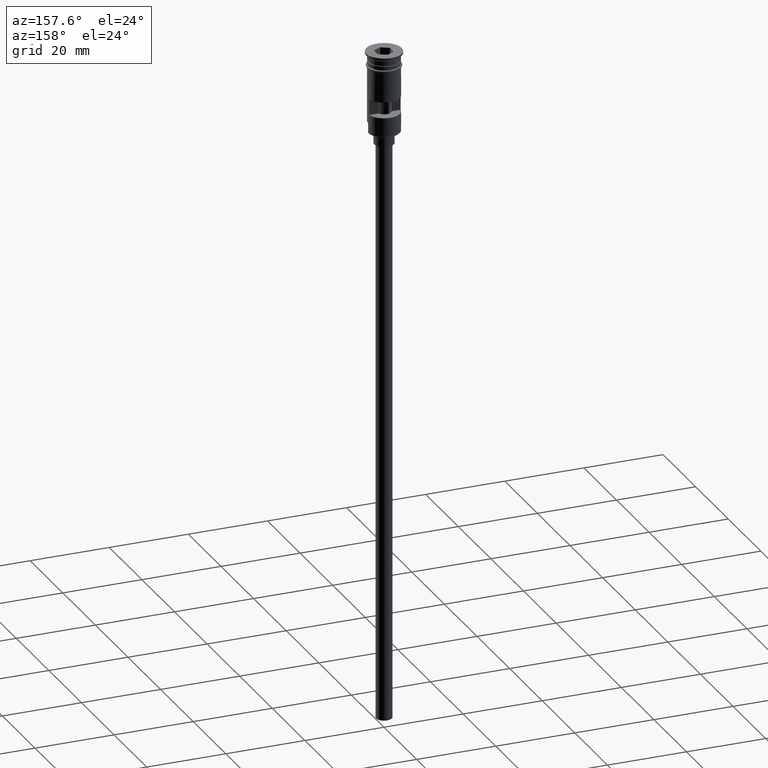
[diagram: clean part render]
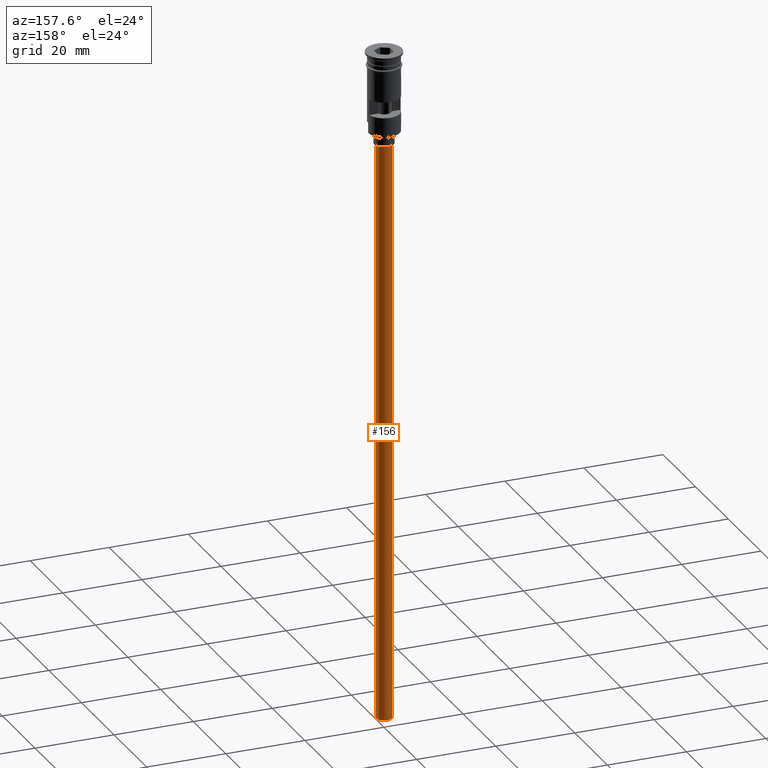
[diagram: same view with one face highlighted and labeled with its STEP entity id]
A machine part, auxiliary view. The second image highlights one B-rep face of the part: STEP entity #156.
In plain terms, the highlighted cylindrical surface (edge-blend (fillet) strip) has radius 2 mm, axis along (-0, -0, 1).
Its self-contained STEP definition (entity closure, byte-faithful):
#9 = CYLINDRICAL_SURFACE ( 'NONE', #616, 2.000000000000000000 ) ;
#122 = DIRECTION ( 'NONE',  ( -0.000000000000000000, -0.000000000000000000, 1.000000000000000000 ) ) ;
#156 = ADVANCED_FACE ( 'NONE', ( #1235 ), #9, .T. ) ;
#190 = VERTEX_POINT ( 'NONE', #832 ) ;
#206 = CARTESIAN_POINT ( 'NONE',  ( 2.000000000000000000, 0.000000000000000000, -170.4999999999999716 ) ) ;
#215 = EDGE_CURVE ( 'NONE', #190, #609, #642, .T. ) ;
#216 = DIRECTION ( 'NONE',  ( -0.000000000000000000, -0.000000000000000000, 1.000000000000000000 ) ) ;
#277 = ORIENTED_EDGE ( 'NONE', *, *, #215, .F. ) ;
#304 = CARTESIAN_POINT ( 'NONE',  ( 0.000000000000000000, 0.000000000000000000, -23.49999999999999645 ) ) ;
#305 = CARTESIAN_POINT ( 'NONE',  ( -2.000000000000000000, 2.449293598294706414E-16, -23.49999999999999645 ) ) ;
#313 = DIRECTION ( 'NONE',  ( -1.000000000000000000, 0.000000000000000000, 0.000000000000000000 ) ) ;
#326 = VERTEX_POINT ( 'NONE', #305 ) ;
#452 = DIRECTION ( 'NONE',  ( -0.000000000000000000, -0.000000000000000000, 1.000000000000000000 ) ) ;
#471 = CARTESIAN_POINT ( 'NONE',  ( -2.000000000000000000, 2.449293598294706414E-16, -170.4999999999999716 ) ) ;
#474 = CARTESIAN_POINT ( 'NONE',  ( 0.000000000000000000, 0.000000000000000000, -170.4999999999999716 ) ) ;
#568 = ORIENTED_EDGE ( 'NONE', *, *, #1031, .T. ) ;
#609 = VERTEX_POINT ( 'NONE', #1317 ) ;
#616 = AXIS2_PLACEMENT_3D ( 'NONE', #474, #122, #624 ) ;
#624 = DIRECTION ( 'NONE',  ( 1.000000000000000000, 0.000000000000000000, 0.000000000000000000 ) ) ;
#642 = CIRCLE ( 'NONE', #822, 2.000000000000000000 ) ;
#704 = CARTESIAN_POINT ( 'NONE',  ( 2.000000000000000000, 0.000000000000000000, -23.49999999999999645 ) ) ;
#719 = VERTEX_POINT ( 'NONE', #704 ) ;
#724 = ORIENTED_EDGE ( 'NONE', *, *, #1190, .T. ) ;
#792 = EDGE_CURVE ( 'NONE', #609, #719, #1060, .T. ) ;
#796 = DIRECTION ( 'NONE',  ( 0.000000000000000000, 0.000000000000000000, -1.000000000000000000 ) ) ;
#822 = AXIS2_PLACEMENT_3D ( 'NONE', #1149, #1013, #991 ) ;
#826 = AXIS2_PLACEMENT_3D ( 'NONE', #304, #796, #313 ) ;
#827 = VECTOR ( 'NONE', #216, 1000.000000000000000 ) ;
#832 = CARTESIAN_POINT ( 'NONE',  ( -2.000000000000000000, 2.449293598294706414E-16, -170.4999999999999716 ) ) ;
#991 = DIRECTION ( 'NONE',  ( -1.000000000000000000, 0.000000000000000000, 0.000000000000000000 ) ) ;
#1013 = DIRECTION ( 'NONE',  ( 0.000000000000000000, 0.000000000000000000, -1.000000000000000000 ) ) ;
#1031 = EDGE_CURVE ( 'NONE', #326, #719, #1088, .T. ) ;
#1060 = LINE ( 'NONE', #206, #1245 ) ;
#1088 = CIRCLE ( 'NONE', #826, 2.000000000000000000 ) ;
#1149 = CARTESIAN_POINT ( 'NONE',  ( 0.000000000000000000, 0.000000000000000000, -170.4999999999999716 ) ) ;
#1179 = ORIENTED_EDGE ( 'NONE', *, *, #792, .F. ) ;
#1190 = EDGE_CURVE ( 'NONE', #190, #326, #1216, .T. ) ;
#1216 = LINE ( 'NONE', #471, #827 ) ;
#1235 = FACE_OUTER_BOUND ( 'NONE', #1494, .T. ) ;
#1245 = VECTOR ( 'NONE', #452, 1000.000000000000000 ) ;
#1317 = CARTESIAN_POINT ( 'NONE',  ( 2.000000000000000000, 0.000000000000000000, -170.4999999999999716 ) ) ;
#1494 = EDGE_LOOP ( 'NONE', ( #277, #724, #568, #1179 ) ) ;